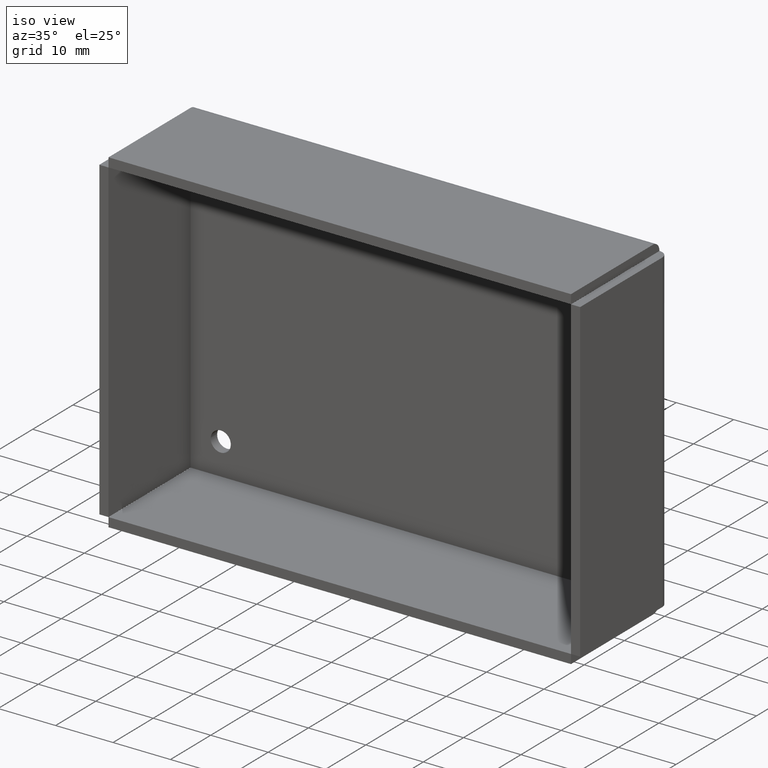
[diagram: clean part render]
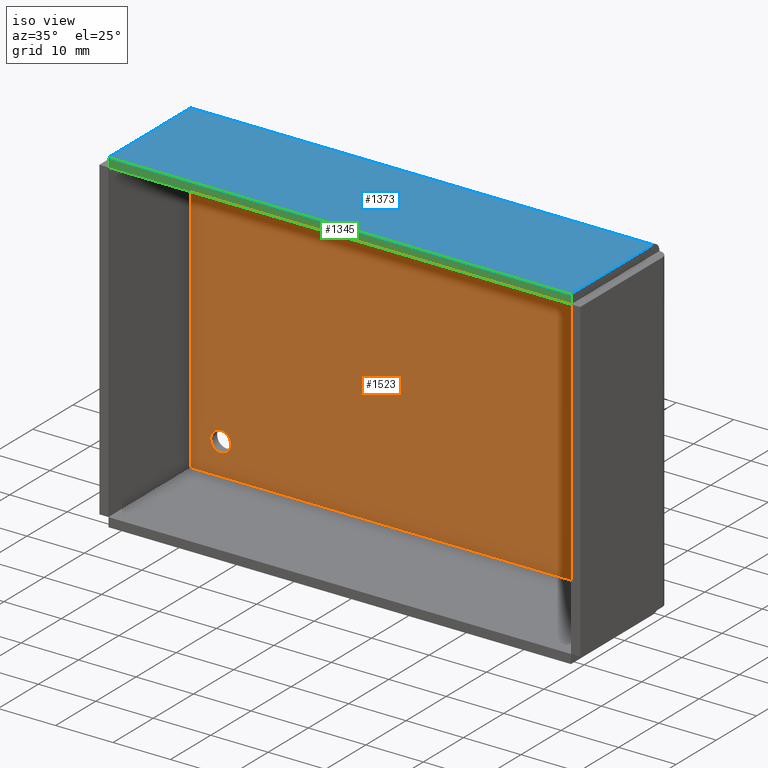
[diagram: same view with three faces highlighted in distinct colors, each labeled with its STEP entity id]
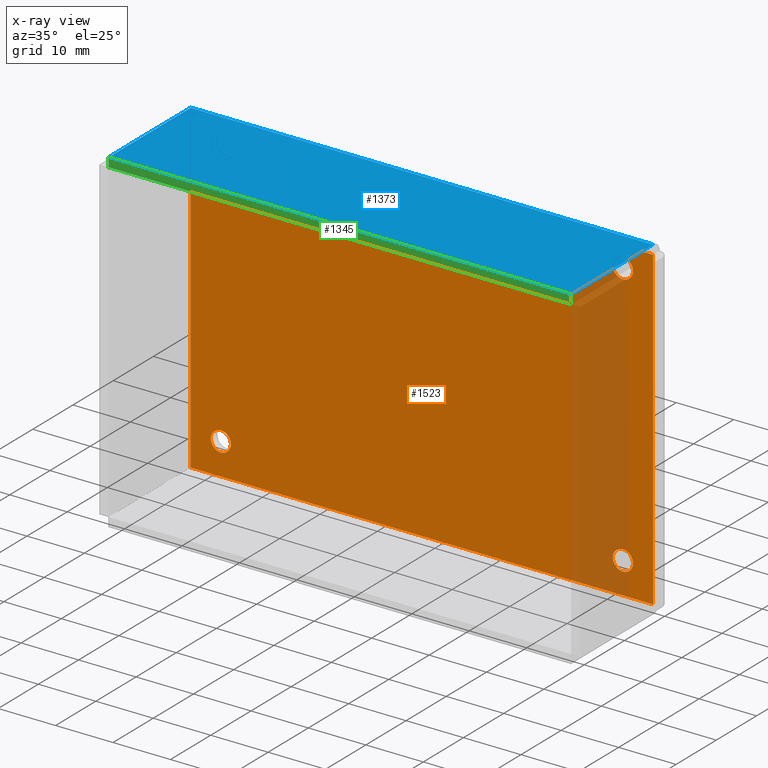
[diagram: x-ray of the same camera — body ghosted, the three highlighted faces saturated]
A machine part, iso view with three faces highlighted in distinct colors.
The next image is the same camera in x-ray (body ghosted, the three faces saturated) — at least one of them is partly hidden behind the body in this view.
Their STEP definitions:

[orange] entity #1523 — the highlighted face is a freeform B-spline surface patch.
#62=CARTESIAN_POINT('',(-35.0,56.768048000000000,56.750000000000000));
#63=VERTEX_POINT('',#62);
#64=CARTESIAN_POINT('',(-36.744605473756351,56.768048000000057,55.137301642146873));
#65=VERTEX_POINT('',#64);
#66=CARTESIAN_POINT('',(-35.0,56.768048000000000,56.750000000000000));
#67=CARTESIAN_POINT('',(-36.617685011709163,56.768047999999993,56.749999999999993));
#68=CARTESIAN_POINT('',(-36.744605473756351,56.768048000000057,55.137301642146866));
#76=(BOUNDED_CURVE()B_SPLINE_CURVE(2,(#66,#67,#68),.UNSPECIFIED.,.F.,.U.)B_SPLINE_CURVE_WITH_KNOTS((3,3),(0.0,0.236331475080879),.UNSPECIFIED.)CURVE()GEOMETRIC_REPRESENTATION_ITEM()RATIONAL_B_SPLINE_CURVE((1.0,0.723120454226521,0.969723720232001))REPRESENTATION_ITEM(''));
#77=EDGE_CURVE('',#63,#65,#76,.T.);
#118=CARTESIAN_POINT('',(-33.255394526243663,56.768048000000057,54.862698357853127));
#119=VERTEX_POINT('',#118);
#125=CARTESIAN_POINT('',(-33.255394526243663,56.768048000000064,54.862698357853134));
#126=CARTESIAN_POINT('',(-33.249999999999993,56.768048000000007,54.931243204544401));
#127=CARTESIAN_POINT('',(-33.250000000000000,56.768048000000000,55.0));
#128=CARTESIAN_POINT('',(-33.249999999999993,56.768048000000000,56.750000000000000));
#129=CARTESIAN_POINT('',(-35.0,56.768048000000000,56.750000000000000));
#137=(BOUNDED_CURVE()B_SPLINE_CURVE(2,(#125,#126,#127,#128,#129),.UNSPECIFIED.,.F.,.U.)B_SPLINE_CURVE_WITH_KNOTS((3,2,3),(0.736331475080878,0.750000000000000,1.0),.UNSPECIFIED.)CURVE()GEOMETRIC_REPRESENTATION_ITEM()RATIONAL_B_SPLINE_CURVE((0.969723720232000,0.983986326960026,1.0,0.707106781186547,1.0))REPRESENTATION_ITEM(''));
#138=EDGE_CURVE('',#119,#63,#137,.T.);
#161=CARTESIAN_POINT('',(-35.0,56.768048000000000,53.250000000000000));
#162=VERTEX_POINT('',#161);
#163=CARTESIAN_POINT('',(-36.744605473756359,56.768048000000064,55.137301642146866));
#164=CARTESIAN_POINT('',(-36.750000000000021,56.768048000000007,55.068756795455599));
#165=CARTESIAN_POINT('',(-36.750000000000007,56.768048000000000,55.0));
#166=CARTESIAN_POINT('',(-36.750000000000014,56.768048000000000,53.249999999999993));
#167=CARTESIAN_POINT('',(-35.0,56.768048000000000,53.250000000000000));
#175=(BOUNDED_CURVE()B_SPLINE_CURVE(2,(#163,#164,#165,#166,#167),.UNSPECIFIED.,.F.,.U.)B_SPLINE_CURVE_WITH_KNOTS((3,2,3),(0.236331475080879,0.250000000000000,0.500000000000000),.UNSPECIFIED.)CURVE()GEOMETRIC_REPRESENTATION_ITEM()RATIONAL_B_SPLINE_CURVE((0.969723720232003,0.983986326960027,1.0,0.707106781186547,1.0))REPRESENTATION_ITEM(''));
#176=EDGE_CURVE('',#65,#162,#175,.T.);
#178=CARTESIAN_POINT('',(-35.0,56.768048000000000,53.250000000000000));
#179=CARTESIAN_POINT('',(-33.382314988290844,56.768048000000014,53.250000000000007));
#180=CARTESIAN_POINT('',(-33.255394526243656,56.768048000000064,54.862698357853134));
#188=(BOUNDED_CURVE()B_SPLINE_CURVE(2,(#178,#179,#180),.UNSPECIFIED.,.F.,.U.)B_SPLINE_CURVE_WITH_KNOTS((3,3),(0.500000000000000,0.736331475080879),.UNSPECIFIED.)CURVE()GEOMETRIC_REPRESENTATION_ITEM()RATIONAL_B_SPLINE_CURVE((1.0,0.723120454226521,0.969723720232002))REPRESENTATION_ITEM(''));
#189=EDGE_CURVE('',#162,#119,#188,.T.);
#244=CARTESIAN_POINT('',(35.0,56.768048000000000,56.750000000000000));
#245=VERTEX_POINT('',#244);
#246=CARTESIAN_POINT('',(33.255394526243663,56.768048000000057,55.137301642146873));
#247=VERTEX_POINT('',#246);
#248=CARTESIAN_POINT('',(35.0,56.768048000000000,56.750000000000000));
#249=CARTESIAN_POINT('',(33.382314988290837,56.768047999999993,56.749999999999993));
#250=CARTESIAN_POINT('',(33.255394526243656,56.768048000000057,55.137301642146866));
#258=(BOUNDED_CURVE()B_SPLINE_CURVE(2,(#248,#249,#250),.UNSPECIFIED.,.F.,.U.)B_SPLINE_CURVE_WITH_KNOTS((3,3),(0.0,0.236331475080879),.UNSPECIFIED.)CURVE()GEOMETRIC_REPRESENTATION_ITEM()RATIONAL_B_SPLINE_CURVE((1.0,0.723120454226521,0.969723720232001))REPRESENTATION_ITEM(''));
#259=EDGE_CURVE('',#245,#247,#258,.T.);
#300=CARTESIAN_POINT('',(36.744605473756351,56.768048000000057,54.862698357853127));
#301=VERTEX_POINT('',#300);
#307=CARTESIAN_POINT('',(36.744605473756351,56.768048000000064,54.862698357853134));
#308=CARTESIAN_POINT('',(36.750000000000007,56.768048000000007,54.931243204544401));
#309=CARTESIAN_POINT('',(36.750000000000007,56.768048000000000,55.0));
#310=CARTESIAN_POINT('',(36.750000000000014,56.768048000000000,56.750000000000000));
#311=CARTESIAN_POINT('',(35.0,56.768048000000000,56.750000000000000));
#319=(BOUNDED_CURVE()B_SPLINE_CURVE(2,(#307,#308,#309,#310,#311),.UNSPECIFIED.,.F.,.U.)B_SPLINE_CURVE_WITH_KNOTS((3,2,3),(0.736331475080878,0.750000000000000,1.0),.UNSPECIFIED.)CURVE()GEOMETRIC_REPRESENTATION_ITEM()RATIONAL_B_SPLINE_CURVE((0.969723720232000,0.983986326960026,1.0,0.707106781186547,1.0))REPRESENTATION_ITEM(''));
#320=EDGE_CURVE('',#301,#245,#319,.T.);
#343=CARTESIAN_POINT('',(35.0,56.768048000000000,53.250000000000000));
#344=VERTEX_POINT('',#343);
#345=CARTESIAN_POINT('',(33.255394526243663,56.768048000000064,55.137301642146866));
#346=CARTESIAN_POINT('',(33.250000000000000,56.768048000000000,55.068756795455599));
#347=CARTESIAN_POINT('',(33.250000000000000,56.768048000000000,55.0));
#348=CARTESIAN_POINT('',(33.249999999999993,56.768048000000000,53.249999999999993));
#349=CARTESIAN_POINT('',(35.0,56.768048000000000,53.250000000000000));
#357=(BOUNDED_CURVE()B_SPLINE_CURVE(2,(#345,#346,#347,#348,#349),.UNSPECIFIED.,.F.,.U.)B_SPLINE_CURVE_WITH_KNOTS((3,2,3),(0.236331475080879,0.250000000000000,0.500000000000000),.UNSPECIFIED.)CURVE()GEOMETRIC_REPRESENTATION_ITEM()RATIONAL_B_SPLINE_CURVE((0.969723720232001,0.983986326960027,1.0,0.707106781186547,1.0))REPRESENTATION_ITEM(''));
#358=EDGE_CURVE('',#247,#344,#357,.T.);
#360=CARTESIAN_POINT('',(35.0,56.768048000000000,53.250000000000000));
#361=CARTESIAN_POINT('',(36.617685011709170,56.768048000000014,53.250000000000007));
#362=CARTESIAN_POINT('',(36.744605473756351,56.768048000000064,54.862698357853134));
#370=(BOUNDED_CURVE()B_SPLINE_CURVE(2,(#360,#361,#362),.UNSPECIFIED.,.F.,.U.)B_SPLINE_CURVE_WITH_KNOTS((3,3),(0.500000000000000,0.736331475080879),.UNSPECIFIED.)CURVE()GEOMETRIC_REPRESENTATION_ITEM()RATIONAL_B_SPLINE_CURVE((1.0,0.723120454226521,0.969723720232002))REPRESENTATION_ITEM(''));
#371=EDGE_CURVE('',#344,#301,#370,.T.);
#426=CARTESIAN_POINT('',(-35.0,56.768048000000000,10.750000000000000));
#427=VERTEX_POINT('',#426);
#428=CARTESIAN_POINT('',(-36.744605473756351,56.768048000000057,9.137301642146863));
#429=VERTEX_POINT('',#428);
#430=CARTESIAN_POINT('',(-35.0,56.768048000000000,10.750000000000000));
#431=CARTESIAN_POINT('',(-36.617685011709163,56.768048000000000,10.749999999999998));
#432=CARTESIAN_POINT('',(-36.744605473756344,56.768048000000064,9.137301642146863));
#440=(BOUNDED_CURVE()B_SPLINE_CURVE(2,(#430,#431,#432),.UNSPECIFIED.,.F.,.U.)B_SPLINE_CURVE_WITH_KNOTS((3,3),(0.0,0.236331475080879),.UNSPECIFIED.)CURVE()GEOMETRIC_REPRESENTATION_ITEM()RATIONAL_B_SPLINE_CURVE((1.0,0.723120454226520,0.969723720232002))REPRESENTATION_ITEM(''));
#441=EDGE_CURVE('',#427,#429,#440,.T.);
#482=CARTESIAN_POINT('',(-33.255394526243663,56.768048000000057,8.862698357853137));
#483=VERTEX_POINT('',#482);
#489=CARTESIAN_POINT('',(-33.255394526243656,56.768048000000071,8.862698357853137));
#490=CARTESIAN_POINT('',(-33.249999999999993,56.768048000000014,8.931243204544405));
#491=CARTESIAN_POINT('',(-33.250000000000000,56.768048000000000,9.0));
#492=CARTESIAN_POINT('',(-33.249999999999993,56.768048000000000,10.750000000000000));
#493=CARTESIAN_POINT('',(-35.0,56.768048000000000,10.750000000000000));
#501=(BOUNDED_CURVE()B_SPLINE_CURVE(2,(#489,#490,#491,#492,#493),.UNSPECIFIED.,.F.,.U.)B_SPLINE_CURVE_WITH_KNOTS((3,2,3),(0.736331475080879,0.750000000000000,1.0),.UNSPECIFIED.)CURVE()GEOMETRIC_REPRESENTATION_ITEM()RATIONAL_B_SPLINE_CURVE((0.969723720232003,0.983986326960027,1.0,0.707106781186547,1.0))REPRESENTATION_ITEM(''));
#502=EDGE_CURVE('',#483,#427,#501,.T.);
#525=CARTESIAN_POINT('',(-35.0,56.768048000000000,7.249999999999999));
#526=VERTEX_POINT('',#525);
#527=CARTESIAN_POINT('',(-36.744605473756359,56.768048000000064,9.137301642146863));
#528=CARTESIAN_POINT('',(-36.750000000000021,56.768048000000007,9.068756795455597));
#529=CARTESIAN_POINT('',(-36.750000000000007,56.768048000000000,9.0));
#530=CARTESIAN_POINT('',(-36.750000000000014,56.768048000000000,7.249999999999999));
#531=CARTESIAN_POINT('',(-35.0,56.768048000000000,7.249999999999999));
#539=(BOUNDED_CURVE()B_SPLINE_CURVE(2,(#527,#528,#529,#530,#531),.UNSPECIFIED.,.F.,.U.)B_SPLINE_CURVE_WITH_KNOTS((3,2,3),(0.236331475080879,0.250000000000000,0.500000000000000),.UNSPECIFIED.)CURVE()GEOMETRIC_REPRESENTATION_ITEM()RATIONAL_B_SPLINE_CURVE((0.969723720232003,0.983986326960027,1.0,0.707106781186547,1.0))REPRESENTATION_ITEM(''));
#540=EDGE_CURVE('',#429,#526,#539,.T.);
#542=CARTESIAN_POINT('',(-35.0,56.768048000000000,7.249999999999999));
#543=CARTESIAN_POINT('',(-33.382314988290844,56.768047999999986,7.249999999999999));
#544=CARTESIAN_POINT('',(-33.255394526243656,56.768048000000071,8.862698357853137));
#552=(BOUNDED_CURVE()B_SPLINE_CURVE(2,(#542,#543,#544),.UNSPECIFIED.,.F.,.U.)B_SPLINE_CURVE_WITH_KNOTS((3,3),(0.500000000000000,0.736331475080879),.UNSPECIFIED.)CURVE()GEOMETRIC_REPRESENTATION_ITEM()RATIONAL_B_SPLINE_CURVE((1.0,0.723120454226520,0.969723720232003))REPRESENTATION_ITEM(''));
#553=EDGE_CURVE('',#526,#483,#552,.T.);
#608=CARTESIAN_POINT('',(35.0,56.768048000000000,10.750000000000000));
#609=VERTEX_POINT('',#608);
#610=CARTESIAN_POINT('',(33.255394526243663,56.768048000000057,9.137301642146863));
#611=VERTEX_POINT('',#610);
#612=CARTESIAN_POINT('',(35.0,56.768048000000000,10.750000000000000));
#613=CARTESIAN_POINT('',(33.382314988290837,56.768048000000000,10.749999999999998));
#614=CARTESIAN_POINT('',(33.255394526243649,56.768048000000064,9.137301642146863));
#622=(BOUNDED_CURVE()B_SPLINE_CURVE(2,(#612,#613,#614),.UNSPECIFIED.,.F.,.U.)B_SPLINE_CURVE_WITH_KNOTS((3,3),(0.0,0.236331475080879),.UNSPECIFIED.)CURVE()GEOMETRIC_REPRESENTATION_ITEM()RATIONAL_B_SPLINE_CURVE((1.0,0.723120454226520,0.969723720232002))REPRESENTATION_ITEM(''));
#623=EDGE_CURVE('',#609,#611,#622,.T.);
#664=CARTESIAN_POINT('',(36.744605473756351,56.768048000000057,8.862698357853137));
#665=VERTEX_POINT('',#664);
#671=CARTESIAN_POINT('',(36.744605473756351,56.768048000000071,8.862698357853137));
#672=CARTESIAN_POINT('',(36.750000000000007,56.768048000000014,8.931243204544405));
#673=CARTESIAN_POINT('',(36.750000000000007,56.768048000000000,9.0));
#674=CARTESIAN_POINT('',(36.750000000000014,56.768048000000000,10.750000000000000));
#675=CARTESIAN_POINT('',(35.0,56.768048000000000,10.750000000000000));
#683=(BOUNDED_CURVE()B_SPLINE_CURVE(2,(#671,#672,#673,#674,#675),.UNSPECIFIED.,.F.,.U.)B_SPLINE_CURVE_WITH_KNOTS((3,2,3),(0.736331475080879,0.750000000000000,1.0),.UNSPECIFIED.)CURVE()GEOMETRIC_REPRESENTATION_ITEM()RATIONAL_B_SPLINE_CURVE((0.969723720232003,0.983986326960027,1.0,0.707106781186547,1.0))REPRESENTATION_ITEM(''));
#684=EDGE_CURVE('',#665,#609,#683,.T.);
#707=CARTESIAN_POINT('',(35.0,56.768048000000000,7.249999999999999));
#708=VERTEX_POINT('',#707);
#709=CARTESIAN_POINT('',(33.255394526243649,56.768048000000064,9.137301642146863));
#710=CARTESIAN_POINT('',(33.250000000000000,56.768048000000000,9.068756795455597));
#711=CARTESIAN_POINT('',(33.250000000000000,56.768048000000000,9.0));
#712=CARTESIAN_POINT('',(33.249999999999993,56.768048000000000,7.249999999999999));
#713=CARTESIAN_POINT('',(35.0,56.768048000000000,7.249999999999999));
#721=(BOUNDED_CURVE()B_SPLINE_CURVE(2,(#709,#710,#711,#712,#713),.UNSPECIFIED.,.F.,.U.)B_SPLINE_CURVE_WITH_KNOTS((3,2,3),(0.236331475080879,0.250000000000000,0.500000000000000),.UNSPECIFIED.)CURVE()GEOMETRIC_REPRESENTATION_ITEM()RATIONAL_B_SPLINE_CURVE((0.969723720232002,0.983986326960027,1.0,0.707106781186547,1.0))REPRESENTATION_ITEM(''));
#722=EDGE_CURVE('',#611,#708,#721,.T.);
#724=CARTESIAN_POINT('',(35.0,56.768048000000000,7.249999999999999));
#725=CARTESIAN_POINT('',(36.617685011709163,56.768048000000000,7.249999999999999));
#726=CARTESIAN_POINT('',(36.744605473756344,56.768048000000064,8.862698357853137));
#734=(BOUNDED_CURVE()B_SPLINE_CURVE(2,(#724,#725,#726),.UNSPECIFIED.,.F.,.U.)B_SPLINE_CURVE_WITH_KNOTS((3,3),(0.500000000000000,0.736331475080879),.UNSPECIFIED.)CURVE()GEOMETRIC_REPRESENTATION_ITEM()RATIONAL_B_SPLINE_CURVE((1.0,0.723120454226520,0.969723720232002))REPRESENTATION_ITEM(''));
#735=EDGE_CURVE('',#708,#665,#734,.T.);
#941=CARTESIAN_POINT('',(-40.250000000000000,56.768048000000000,3.500000000000000));
#942=VERTEX_POINT('',#941);
#978=CARTESIAN_POINT('',(-40.250000000000000,56.768048000000000,58.500000000000000));
#979=VERTEX_POINT('',#978);
#1002=CARTESIAN_POINT('',(-40.250000000000000,56.768048000000000,3.500000000000000));
#1003=CARTESIAN_POINT('',(-40.250000000000000,56.768048000000000,58.500000000000000));
#1004=QUASI_UNIFORM_CURVE('',1,(#1002,#1003),.UNSPECIFIED.,.F.,.U.);
#1005=EDGE_CURVE('',#942,#979,#1004,.T.);
#1075=CARTESIAN_POINT('',(40.250000000000000,56.768048000000000,58.500000000000000));
#1076=VERTEX_POINT('',#1075);
#1096=CARTESIAN_POINT('',(40.250000000000000,56.768048000000000,3.500000000000000));
#1097=VERTEX_POINT('',#1096);
#1119=CARTESIAN_POINT('',(40.250000000000000,56.768048000000000,3.500000000000000));
#1120=CARTESIAN_POINT('',(40.250000000000000,56.768048000000000,58.500000000000000));
#1121=QUASI_UNIFORM_CURVE('',1,(#1119,#1120),.UNSPECIFIED.,.F.,.U.);
#1122=EDGE_CURVE('',#1097,#1076,#1121,.T.);
#1135=CARTESIAN_POINT('',(-40.250000000000000,56.768048000000000,3.490000000000000));
#1136=VERTEX_POINT('',#1135);
#1137=CARTESIAN_POINT('',(-40.250000000000000,56.768048000000000,3.490000000000000));
#1138=CARTESIAN_POINT('',(-40.250000000000000,56.768048000000000,3.500000000000000));
#1139=QUASI_UNIFORM_CURVE('',1,(#1137,#1138),.UNSPECIFIED.,.F.,.U.);
#1140=EDGE_CURVE('',#1136,#942,#1139,.T.);
#1186=CARTESIAN_POINT('',(40.250000000000000,56.768048000000000,3.490000000000000));
#1187=VERTEX_POINT('',#1186);
#1188=CARTESIAN_POINT('',(40.250000000000000,56.768048000000000,3.490000000000000));
#1189=CARTESIAN_POINT('',(40.250000000000000,56.768048000000000,3.500000000000000));
#1190=QUASI_UNIFORM_CURVE('',1,(#1188,#1189),.UNSPECIFIED.,.F.,.U.);
#1191=EDGE_CURVE('',#1187,#1097,#1190,.T.);
#1274=CARTESIAN_POINT('',(40.250000000000000,56.768048000000000,3.490000000000000));
#1275=CARTESIAN_POINT('',(-40.250000000000000,56.768048000000000,3.490000000000000));
#1276=QUASI_UNIFORM_CURVE('',1,(#1274,#1275),.UNSPECIFIED.,.F.,.U.);
#1277=EDGE_CURVE('',#1187,#1136,#1276,.T.);
#1287=CARTESIAN_POINT('',(-40.250000000000000,56.768048000000000,58.509999999999998));
#1288=VERTEX_POINT('',#1287);
#1296=CARTESIAN_POINT('',(40.250000000000000,56.768048000000000,58.509999999999998));
#1297=VERTEX_POINT('',#1296);
#1298=CARTESIAN_POINT('',(40.250000000000000,56.768048000000000,58.509999999999998));
#1299=CARTESIAN_POINT('',(-40.250000000000000,56.768048000000000,58.509999999999998));
#1300=QUASI_UNIFORM_CURVE('',1,(#1298,#1299),.UNSPECIFIED.,.F.,.U.);
#1301=EDGE_CURVE('',#1297,#1288,#1300,.T.);
#1453=CARTESIAN_POINT('',(40.250000000000000,56.768048000000000,58.500000000000000));
#1454=CARTESIAN_POINT('',(40.250000000000000,56.768048000000000,58.509999999999998));
#1455=QUASI_UNIFORM_CURVE('',1,(#1453,#1454),.UNSPECIFIED.,.F.,.U.);
#1456=EDGE_CURVE('',#1076,#1297,#1455,.T.);
#1472=CARTESIAN_POINT('',(-40.250000000000000,56.768048000000000,58.500000000000000));
#1473=CARTESIAN_POINT('',(-40.250000000000000,56.768048000000000,58.509999999999998));
#1474=QUASI_UNIFORM_CURVE('',1,(#1472,#1473),.UNSPECIFIED.,.F.,.U.);
#1475=EDGE_CURVE('',#979,#1288,#1474,.T.);
#1484=CARTESIAN_POINT('',(-44.270974843975381,56.768048000000000,61.258247343895377));
#1485=CARTESIAN_POINT('',(-44.270974843975381,56.768048000000000,0.741749704601814));
#1486=CARTESIAN_POINT('',(44.270977003153632,56.768047999999993,61.258247343895377));
#1487=CARTESIAN_POINT('',(44.270977003153632,56.768047999999993,0.741749704601814));
#1488=B_SPLINE_SURFACE_WITH_KNOTS('',1,1,((#1484,#1486),(#1485,#1487)),.UNSPECIFIED.,.F.,.F.,.U.,(2,2),(2,2),(0.0,60.516497639293569),(0.0,88.541951847129013),.UNSPECIFIED.);
#1489=ORIENTED_EDGE('',*,*,#1140,.F.);
#1490=ORIENTED_EDGE('',*,*,#1277,.F.);
#1491=ORIENTED_EDGE('',*,*,#1191,.T.);
#1492=ORIENTED_EDGE('',*,*,#1122,.T.);
#1493=ORIENTED_EDGE('',*,*,#1456,.T.);
#1494=ORIENTED_EDGE('',*,*,#1301,.T.);
#1495=ORIENTED_EDGE('',*,*,#1475,.F.);
#1496=ORIENTED_EDGE('',*,*,#1005,.F.);
#1497=EDGE_LOOP('',(#1489,#1490,#1491,#1492,#1493,#1494,#1495,#1496));
#1498=FACE_OUTER_BOUND('',#1497,.T.);
#1499=ORIENTED_EDGE('',*,*,#735,.F.);
#1500=ORIENTED_EDGE('',*,*,#722,.F.);
#1501=ORIENTED_EDGE('',*,*,#623,.F.);
#1502=ORIENTED_EDGE('',*,*,#684,.F.);
#1503=EDGE_LOOP('',(#1499,#1500,#1501,#1502));
#1504=FACE_BOUND('',#1503,.T.);
#1505=ORIENTED_EDGE('',*,*,#553,.F.);
#1506=ORIENTED_EDGE('',*,*,#540,.F.);
#1507=ORIENTED_EDGE('',*,*,#441,.F.);
#1508=ORIENTED_EDGE('',*,*,#502,.F.);
#1509=EDGE_LOOP('',(#1505,#1506,#1507,#1508));
#1510=FACE_BOUND('',#1509,.T.);
#1511=ORIENTED_EDGE('',*,*,#371,.F.);
#1512=ORIENTED_EDGE('',*,*,#358,.F.);
#1513=ORIENTED_EDGE('',*,*,#259,.F.);
#1514=ORIENTED_EDGE('',*,*,#320,.F.);
#1515=EDGE_LOOP('',(#1511,#1512,#1513,#1514));
#1516=FACE_BOUND('',#1515,.T.);
#1517=ORIENTED_EDGE('',*,*,#189,.F.);
#1518=ORIENTED_EDGE('',*,*,#176,.F.);
#1519=ORIENTED_EDGE('',*,*,#77,.F.);
#1520=ORIENTED_EDGE('',*,*,#138,.F.);
#1521=EDGE_LOOP('',(#1517,#1518,#1519,#1520));
#1522=FACE_BOUND('',#1521,.T.);
#1523=ADVANCED_FACE('',(#1498,#1504,#1510,#1516,#1522),#1488,.T.);

[blue] entity #1373 — the highlighted face is a freeform B-spline surface patch.
#1323=CARTESIAN_POINT('',(-40.250000000000000,36.368048000000002,60.100000000000001));
#1324=VERTEX_POINT('',#1323);
#1331=CARTESIAN_POINT('',(40.250000000000000,36.368048000000002,60.100000000000001));
#1332=VERTEX_POINT('',#1331);
#1338=CARTESIAN_POINT('',(40.250000000000000,36.368048000000002,60.100000000000001));
#1339=CARTESIAN_POINT('',(-40.250000000000000,36.368048000000002,60.100000000000001));
#1340=QUASI_UNIFORM_CURVE('',1,(#1338,#1339),.UNSPECIFIED.,.F.,.U.);
#1341=EDGE_CURVE('',#1332,#1324,#1340,.T.);
#1346=CARTESIAN_POINT('',(-44.270974843975381,35.349069835927729,60.100000000000001));
#1347=CARTESIAN_POINT('',(44.270977003153632,35.349069835927729,60.100000000000001));
#1348=CARTESIAN_POINT('',(-44.270974843975381,57.787026893633133,60.100000000000009));
#1349=CARTESIAN_POINT('',(44.270977003153632,57.787026893633133,60.100000000000009));
#1350=B_SPLINE_SURFACE_WITH_KNOTS('',1,1,((#1346,#1348),(#1347,#1349)),.UNSPECIFIED.,.F.,.F.,.U.,(2,2),(2,2),(0.0,88.541951847129013),(0.0,22.437957057705400),.UNSPECIFIED.);
#1351=CARTESIAN_POINT('',(-40.250000000000000,56.768048000000000,60.100000000000001));
#1352=VERTEX_POINT('',#1351);
#1353=CARTESIAN_POINT('',(-40.250000000000000,36.368048000000002,60.100000000000001));
#1354=CARTESIAN_POINT('',(-40.250000000000000,56.768048000000000,60.100000000000001));
#1355=QUASI_UNIFORM_CURVE('',1,(#1353,#1354),.UNSPECIFIED.,.F.,.U.);
#1356=EDGE_CURVE('',#1324,#1352,#1355,.T.);
#1357=ORIENTED_EDGE('',*,*,#1356,.F.);
#1358=ORIENTED_EDGE('',*,*,#1341,.F.);
#1359=CARTESIAN_POINT('',(40.250000000000000,56.768048000000000,60.100000000000001));
#1360=VERTEX_POINT('',#1359);
#1361=CARTESIAN_POINT('',(40.250000000000000,36.368048000000002,60.100000000000001));
#1362=CARTESIAN_POINT('',(40.250000000000000,56.768048000000000,60.100000000000001));
#1363=QUASI_UNIFORM_CURVE('',1,(#1361,#1362),.UNSPECIFIED.,.F.,.U.);
#1364=EDGE_CURVE('',#1332,#1360,#1363,.T.);
#1365=ORIENTED_EDGE('',*,*,#1364,.T.);
#1366=CARTESIAN_POINT('',(40.250000000000000,56.768048000000000,60.100000000000001));
#1367=CARTESIAN_POINT('',(-40.250000000000000,56.768048000000000,60.100000000000001));
#1368=QUASI_UNIFORM_CURVE('',1,(#1366,#1367),.UNSPECIFIED.,.F.,.U.);
#1369=EDGE_CURVE('',#1360,#1352,#1368,.T.);
#1370=ORIENTED_EDGE('',*,*,#1369,.T.);
#1371=EDGE_LOOP('',(#1357,#1358,#1365,#1370));
#1372=FACE_OUTER_BOUND('',#1371,.T.);
#1373=ADVANCED_FACE('',(#1372),#1350,.T.);

[green] entity #1345 — the highlighted face is a freeform B-spline surface patch.
#1289=CARTESIAN_POINT('',(-40.250000000000000,36.368048000000002,58.509999999999998));
#1290=VERTEX_POINT('',#1289);
#1303=CARTESIAN_POINT('',(40.250000000000000,36.368048000000002,58.509999999999998));
#1304=VERTEX_POINT('',#1303);
#1310=CARTESIAN_POINT('',(40.250000000000000,36.368048000000002,58.509999999999998));
#1311=CARTESIAN_POINT('',(-40.250000000000000,36.368048000000002,58.509999999999998));
#1312=QUASI_UNIFORM_CURVE('',1,(#1310,#1311),.UNSPECIFIED.,.F.,.U.);
#1313=EDGE_CURVE('',#1304,#1290,#1312,.T.);
#1318=CARTESIAN_POINT('',(-44.270974843975381,36.368048000000002,60.179418979387918));
#1319=CARTESIAN_POINT('',(-44.270974843975381,36.368048000000002,58.430577864724960));
#1320=CARTESIAN_POINT('',(44.270977003153632,36.368048000000002,60.179418979387918));
#1321=CARTESIAN_POINT('',(44.270977003153632,36.368048000000002,58.430577864724960));
#1322=B_SPLINE_SURFACE_WITH_KNOTS('',1,1,((#1318,#1320),(#1319,#1321)),.UNSPECIFIED.,.F.,.F.,.U.,(2,2),(2,2),(0.041709130299836,0.958292523729056),(0.0,88.541951847129013),.UNSPECIFIED.);
#1323=CARTESIAN_POINT('',(-40.250000000000000,36.368048000000002,60.100000000000001));
#1324=VERTEX_POINT('',#1323);
#1325=CARTESIAN_POINT('',(-40.250000000000000,36.368048000000002,58.509999999999998));
#1326=CARTESIAN_POINT('',(-40.250000000000000,36.368048000000002,60.100000000000001));
#1327=QUASI_UNIFORM_CURVE('',1,(#1325,#1326),.UNSPECIFIED.,.F.,.U.);
#1328=EDGE_CURVE('',#1290,#1324,#1327,.T.);
#1329=ORIENTED_EDGE('',*,*,#1328,.F.);
#1330=ORIENTED_EDGE('',*,*,#1313,.F.);
#1331=CARTESIAN_POINT('',(40.250000000000000,36.368048000000002,60.100000000000001));
#1332=VERTEX_POINT('',#1331);
#1333=CARTESIAN_POINT('',(40.250000000000000,36.368048000000002,58.509999999999998));
#1334=CARTESIAN_POINT('',(40.250000000000000,36.368048000000002,60.100000000000001));
#1335=QUASI_UNIFORM_CURVE('',1,(#1333,#1334),.UNSPECIFIED.,.F.,.U.);
#1336=EDGE_CURVE('',#1304,#1332,#1335,.T.);
#1337=ORIENTED_EDGE('',*,*,#1336,.T.);
#1338=CARTESIAN_POINT('',(40.250000000000000,36.368048000000002,60.100000000000001));
#1339=CARTESIAN_POINT('',(-40.250000000000000,36.368048000000002,60.100000000000001));
#1340=QUASI_UNIFORM_CURVE('',1,(#1338,#1339),.UNSPECIFIED.,.F.,.U.);
#1341=EDGE_CURVE('',#1332,#1324,#1340,.T.);
#1342=ORIENTED_EDGE('',*,*,#1341,.T.);
#1343=EDGE_LOOP('',(#1329,#1330,#1337,#1342));
#1344=FACE_OUTER_BOUND('',#1343,.T.);
#1345=ADVANCED_FACE('',(#1344),#1322,.T.);